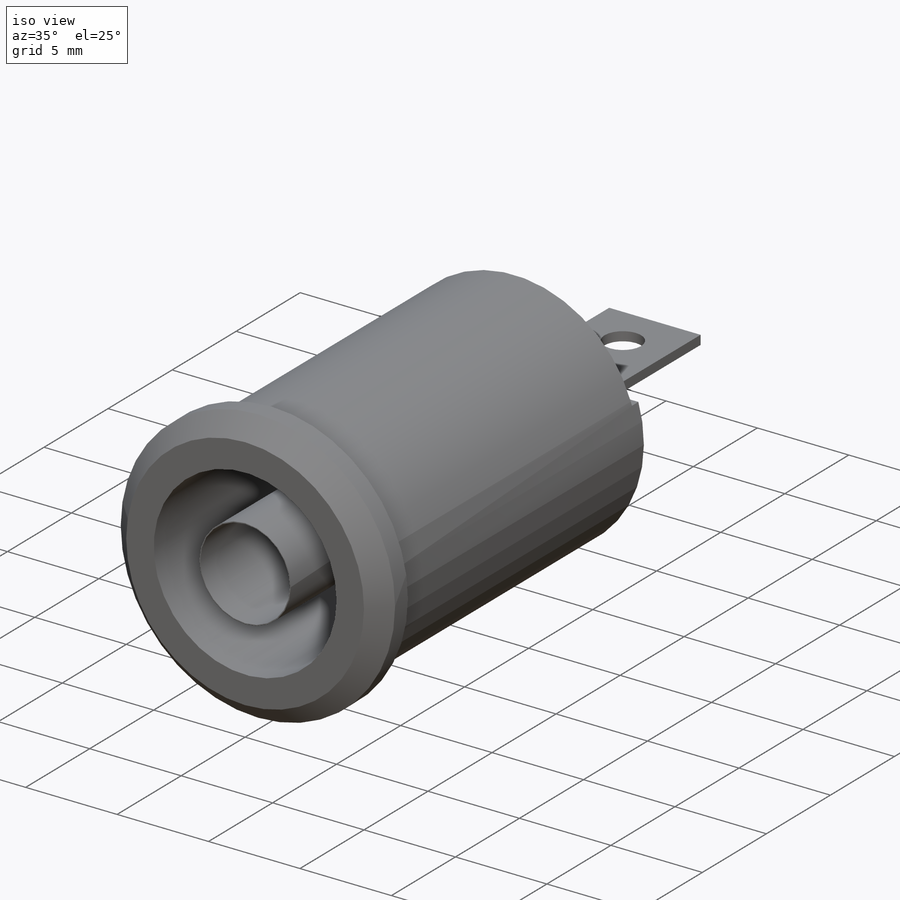
[diagram: iso view]
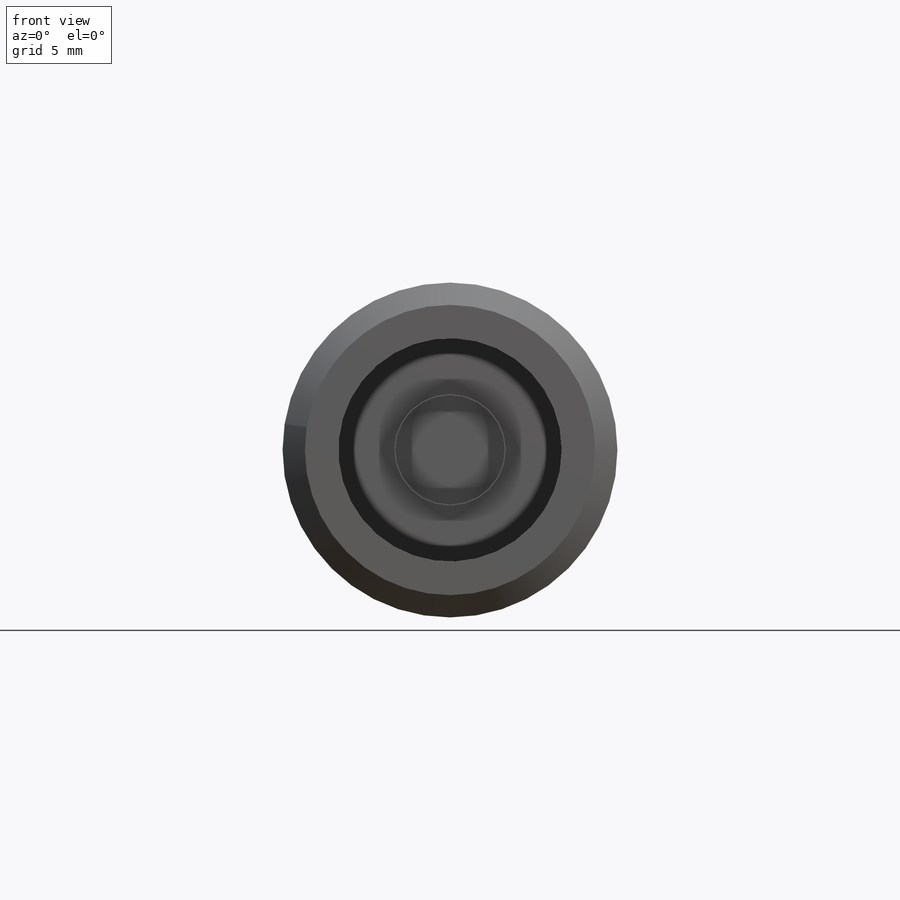
[diagram: front view]
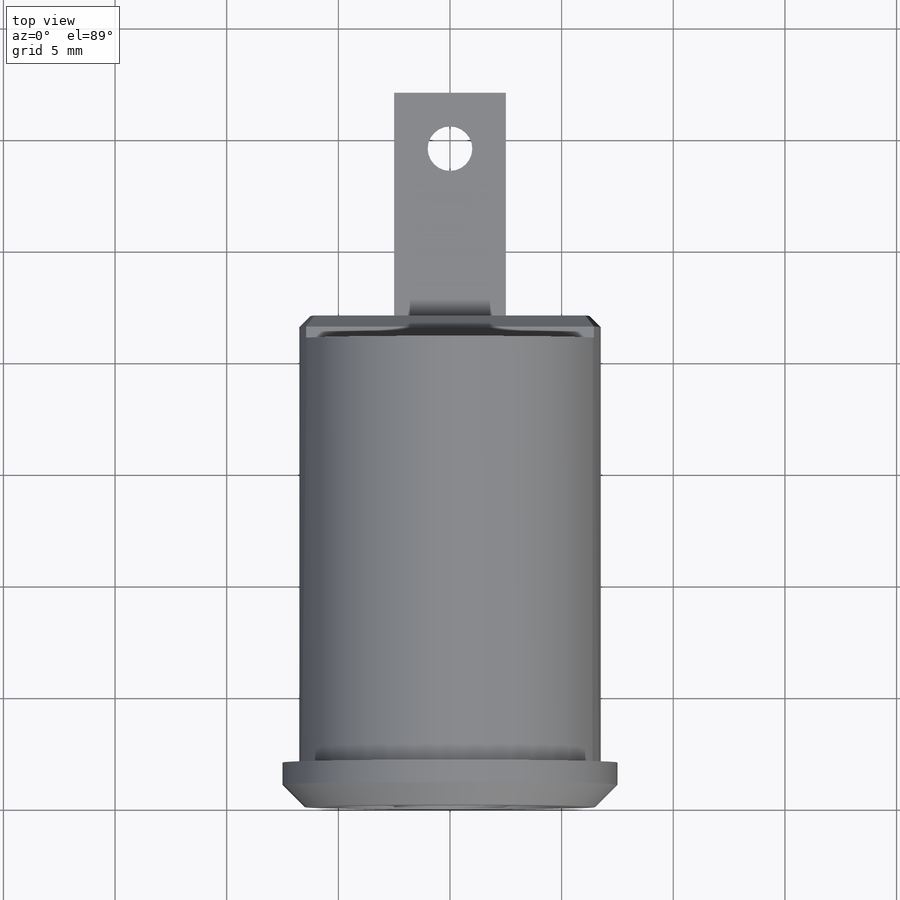
[diagram: top view]
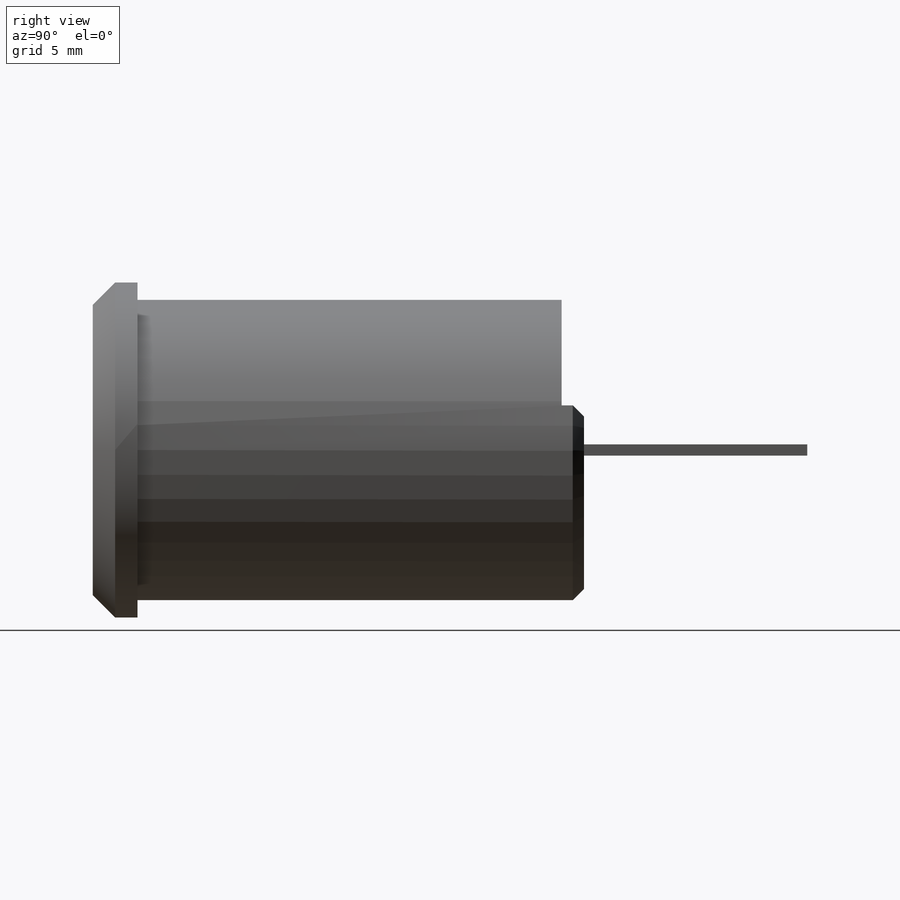
[diagram: right view]
SOLIDWORKS PART (.sldprt)
format: sldprt  version: not decoded by parser v0  size: 232,960 bytes
history: native  units: mm
features: sketch x6, cut_extrude x5, plane x3, chamfer x2, material x1, extrude x1 (+13 scaffold rows collapsed)
feature tree (31):
  scaffold x13  (default folders/planes/origin — collapsed)
  material  "Matériau <non spécifié>"
  plane  "Plan de face"
  plane  "Plan de dessus"
  plane  "Plan de droite"
  sketch  "Esquisse1"  dims[D1=15.0mm]
  extrude  "Extrusion1"  Depth=32mm
  sketch  "Esquisse2"  dims[D1=10.0mm D2=5.0mm D3=4.9mm]
  cut_extrude  "Extrusion3"  Depth=18mm
  sketch  "Esquisse3"  dims[D1=13.5mm]
  cut_extrude  "Extrusion5"  Depth=30mm
  sketch  "Esquisse4"  dims[D1=0.25mm D2=0.25mm D3=2.5mm D4=2.5mm]
  cut_extrude  "Extrusion6"  Depth=10mm
  sketch  "Esquisse5"  dims[D1=2.0mm D2=18.0mm D3=9.0mm D4=6.0mm]
  cut_extrude  "Extrusion7"  Depth=1mm
  sketch  "Esquisse6"  dims[c1.D1=2.0mm c1.D2=2.0mm c1.D3=2.0mm c2.D2=2.5mm c2.D3=2.5mm]
  cut_extrude  "Extrusion8"  [1 undecoded]
  chamfer  "Chanfrein1"  Distance=1mm Angle=45deg
  chamfer  "Chanfrein2"  Distance=0.5mm Angle=45deg
decode coverage: 13 of 14 modeling features carry decoded parameters
note: 1 parameter value undecoded
note: suppression state not decoded; provenance and decode notes live in map.json
